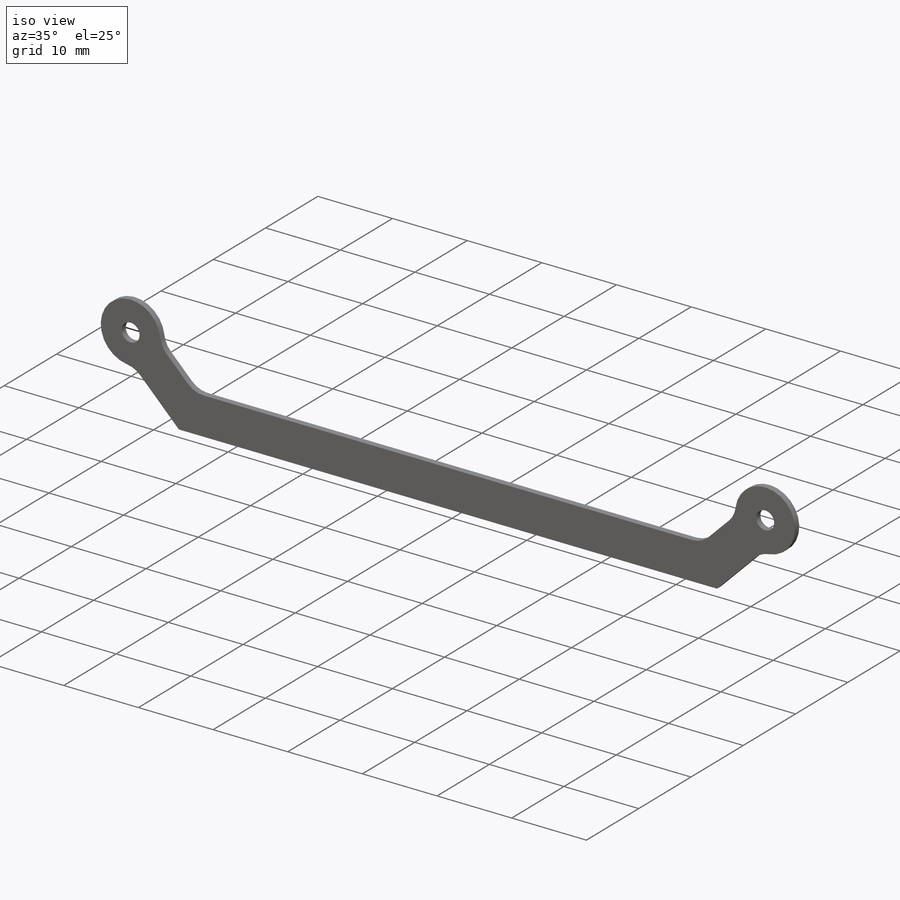
[diagram: iso view]
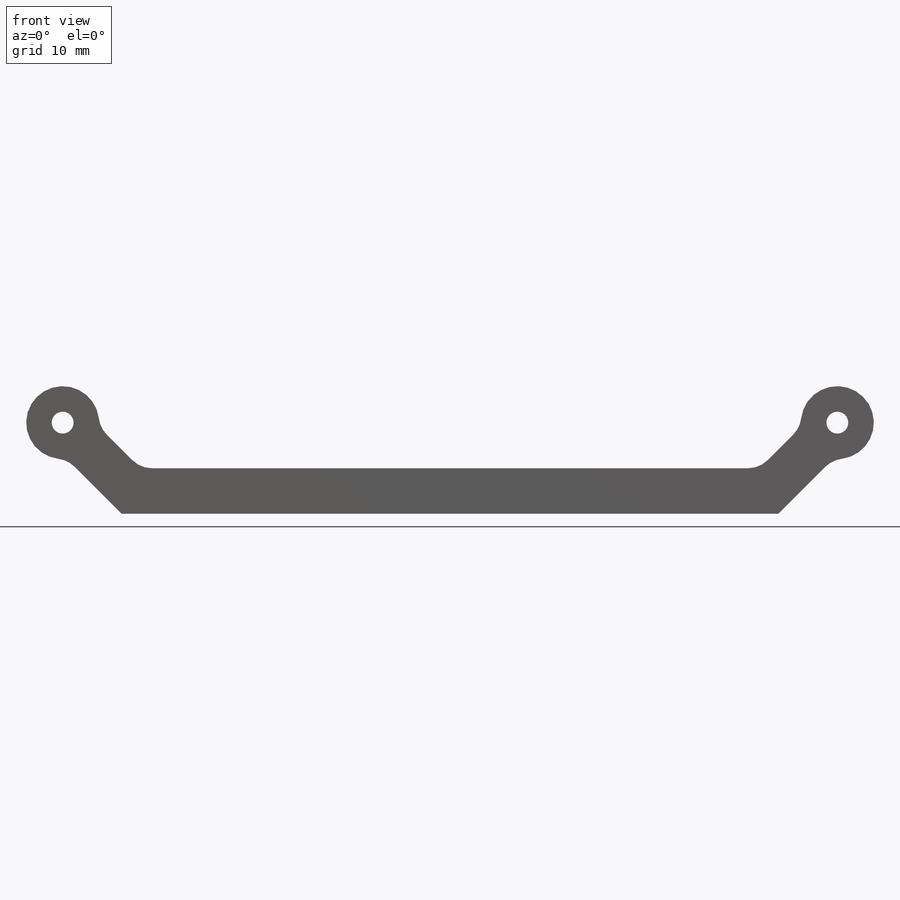
[diagram: front view]
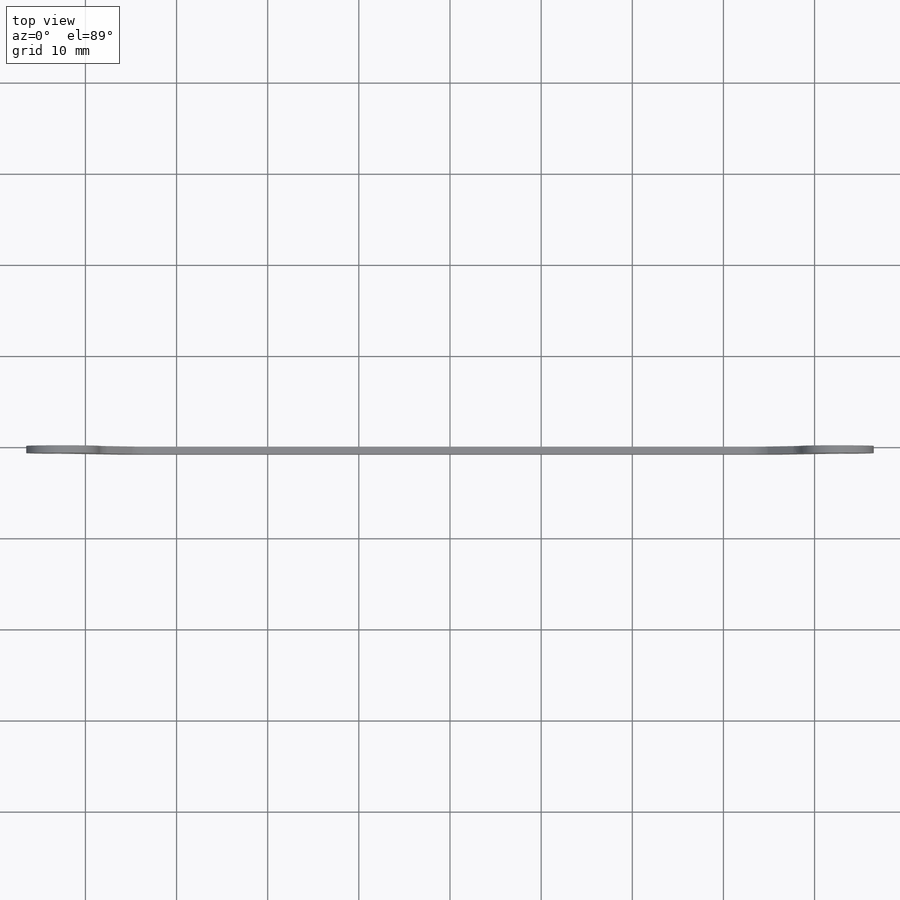
[diagram: top view]
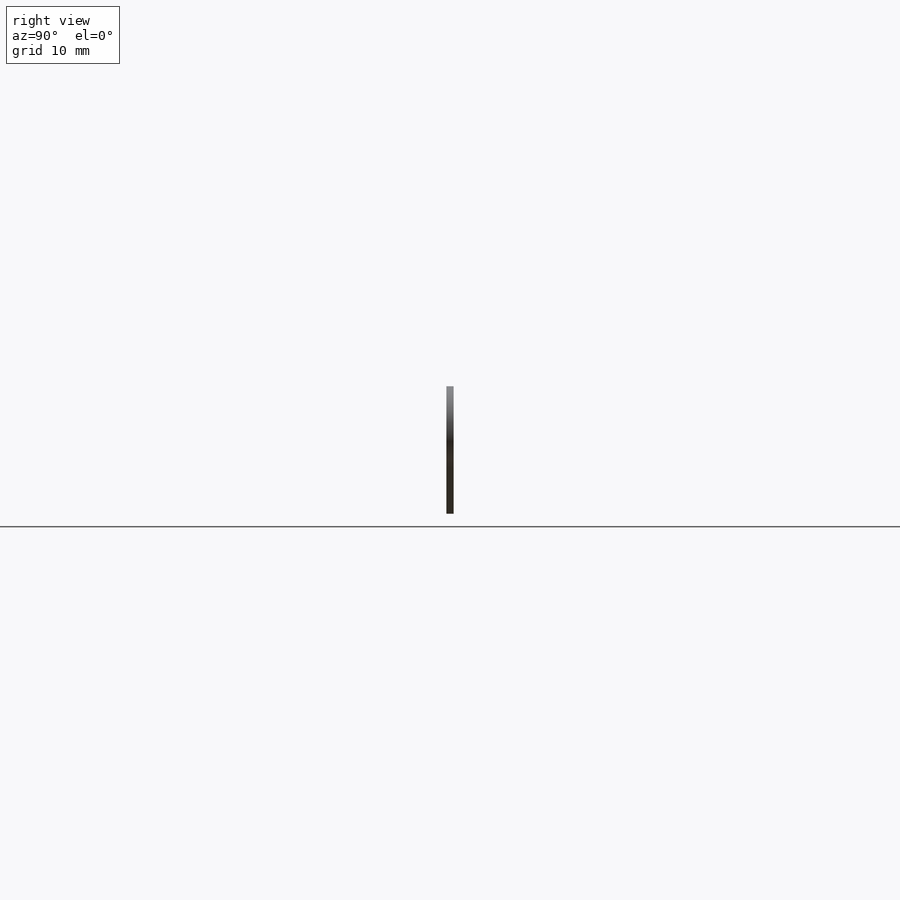
[diagram: right view]
SOLIDWORKS PART (.sldprt)
format: sldprt  version: not decoded by parser v0  size: 338,432 bytes
history: native  units: mm
features: sketch x4, extrude x2, material x1, fillet x1, hole x1 (+12 scaffold rows collapsed)
feature tree (21):
  scaffold x12  (default folders/planes/origin — collapsed)
  material  "Hexcel AS4C (3000 Filaments)"
  sketch  "Sketch3"  dims[c1.D1=6.0mm c1.D4=2.5mm c1.D2=~6.506623mm c2.D2=135.0deg c2.D3=70.0mm c2.D1=85.0mm c2.D4=2.5mm c2.D5=2.5mm]
  extrude  "Boss-Extrude1"  Depth=0.8mm
  sketch  "Sketch7"  dims[D1=8.0mm]
  extrude  "Boss-Extrude2"  [1 undecoded]
  fillet  "Fillet1"  Radius=3mm
  hole  "M2 Clearance Hole1"  Diameter=2.4mm Depth=30.5mm
  sketch  "Sketch9"
  sketch  "Sketch8"  dims[hole-wizard template sketch: 47 standard entries collapsed; hole parameters kept: c15.Hole Depth=30.5mm c15.D3=~14.816244mm c15.Drill Angle=180.0deg]
decode coverage: 6 of 8 modeling features carry decoded parameters
note: ~ marks probable driven/reference dimensions
note: 1 parameter value undecoded
note: suppression state not decoded; provenance and decode notes live in map.json
